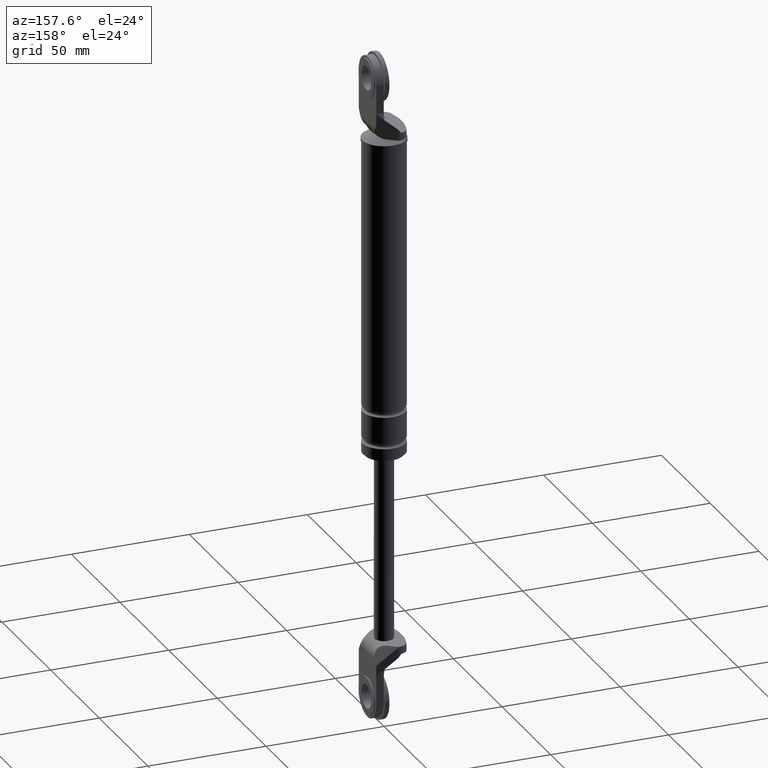
[diagram: clean part render]
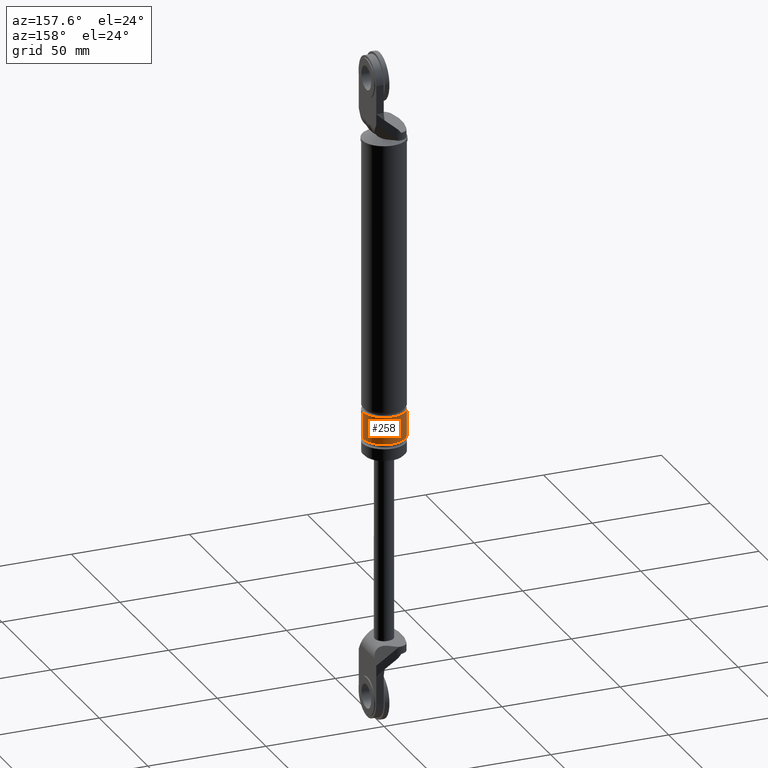
[diagram: same view with one face highlighted and labeled with its STEP entity id]
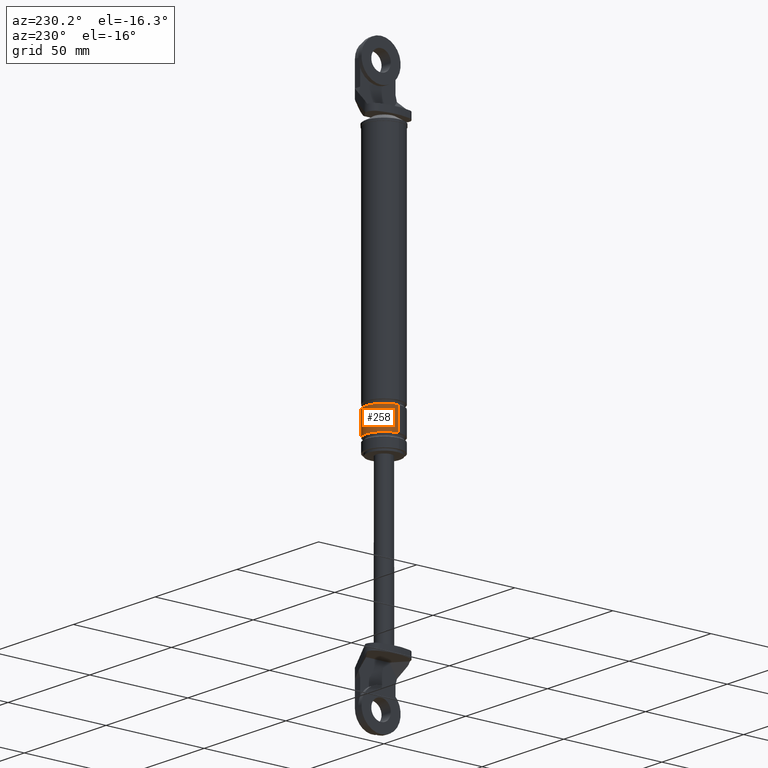
[diagram: same view with one face highlighted and labeled with its STEP entity id]
A machine part, auxiliary view. The second image highlights one B-rep face of the part: STEP entity #258.
A second angle (auxiliary view) of the same face is appended — the face is thin or edge-on in the first view.
In plain terms, the highlighted cylindrical surface (edge-blend (fillet) strip) has radius 9 mm, axis along (0, 0, 1).
Its self-contained STEP definition (entity closure, byte-faithful):
#258=ADVANCED_FACE('',(#835),#834,.T.);
#834=CYLINDRICAL_SURFACE('',#1573,9.00000000000E+000);
#835=FACE_OUTER_BOUND('',#1574,.T.);
#1570=CARTESIAN_POINT('',(0.00000000000E+000,3.58204186421E-014,0.00000000000E+000));
#1571=DIRECTION('',(-0.00000000000E+000,-0.00000000000E+000,1.00000000000E+000));
#1572=DIRECTION('',(-1.00000000000E+000,1.22464679915E-016,0.00000000000E+000));
#1573=AXIS2_PLACEMENT_3D('',#1570,#1571,#1572);
#1574=EDGE_LOOP('',(#2012,#2013,#2014,#2015));
#2012=ORIENTED_EDGE('',*,*,#2265,.F.);
#2013=ORIENTED_EDGE('',*,*,#2283,.T.);
#2014=ORIENTED_EDGE('',*,*,#2271,.T.);
#2015=ORIENTED_EDGE('',*,*,#2284,.F.);
#2265=EDGE_CURVE('',#3072,#3073,#3074,.T.);
#2271=EDGE_CURVE('',#3113,#3106,#3114,.T.);
#2283=EDGE_CURVE('',#3072,#3113,#3186,.T.);
#2284=EDGE_CURVE('',#3073,#3106,#3192,.T.);
#3072=VERTEX_POINT('',#4117);
#3073=VERTEX_POINT('',#4118);
#3074=CIRCLE('',#4122,9.00000000000E+000);
#3106=VERTEX_POINT('',#4143);
#3113=VERTEX_POINT('',#4149);
#3114=CIRCLE('',#4153,9.00000000000E+000);
#3186=(BOUNDED_CURVE() B_SPLINE_CURVE(1,(#4183,#4184),.UNSPECIFIED.,.F.,.F.) B_SPLINE_CURVE_WITH_KNOTS((2,2),(8.33333343261E-002,9.16666667006E-001),.UNSPECIFIED.) CURVE() GEOMETRIC_REPRESENTATION_ITEM() RATIONAL_B_SPLINE_CURVE((1.00000000000E+000,1.00000000000E+000)) REPRESENTATION_ITEM('') );
#3192=(BOUNDED_CURVE() B_SPLINE_CURVE(1,(#4185,#4186),.UNSPECIFIED.,.F.,.F.) B_SPLINE_CURVE_WITH_KNOTS((2,2),(8.33333333333E-002,9.16666666667E-001),.UNSPECIFIED.) CURVE() GEOMETRIC_REPRESENTATION_ITEM() RATIONAL_B_SPLINE_CURVE((7.50000000000E-001,7.50000000000E-001)) REPRESENTATION_ITEM('') );
#4117=CARTESIAN_POINT('',(-9.00000000000E+000,3.58204186421E-014,-4.15000150000E+001));
#4118=CARTESIAN_POINT('',(9.00000000000E+000,3.61192557345E-014,-4.15000150000E+001));
#4119=CARTESIAN_POINT('',(0.00000000000E+000,3.58204186421E-014,-4.15000150000E+001));
#4120=DIRECTION('',(-0.00000000000E+000,0.00000000000E+000,-1.00000000000E+000));
#4121=DIRECTION('',(-1.00000000000E+000,-1.22460635382E-016,0.00000000000E+000));
#4122=AXIS2_PLACEMENT_3D('',#4119,#4120,#4121);
#4143=CARTESIAN_POINT('',(9.00000000000E+000,3.61192557345E-014,-3.00000150000E+001));
#4149=CARTESIAN_POINT('',(-9.00000000000E+000,3.58204186421E-014,-3.00000150000E+001));
#4150=CARTESIAN_POINT('',(0.00000000000E+000,3.58204186421E-014,-3.00000150000E+001));
#4151=DIRECTION('',(-0.00000000000E+000,0.00000000000E+000,-1.00000000000E+000));
#4152=DIRECTION('',(-1.00000000000E+000,-1.22460635382E-016,0.00000000000E+000));
#4153=AXIS2_PLACEMENT_3D('',#4150,#4151,#4152);
#4183=CARTESIAN_POINT('',(-9.00000000000E+000,3.69226007613E-014,-4.15000149863E+001));
#4184=CARTESIAN_POINT('',(-9.00000000000E+000,3.69226007613E-014,-3.00000149953E+001));
#4185=CARTESIAN_POINT('',(9.00000000000E+000,3.46389583683E-014,-4.15000150000E+001));
#4186=CARTESIAN_POINT('',(9.00000000000E+000,3.46389583683E-014,-3.00000150000E+001));